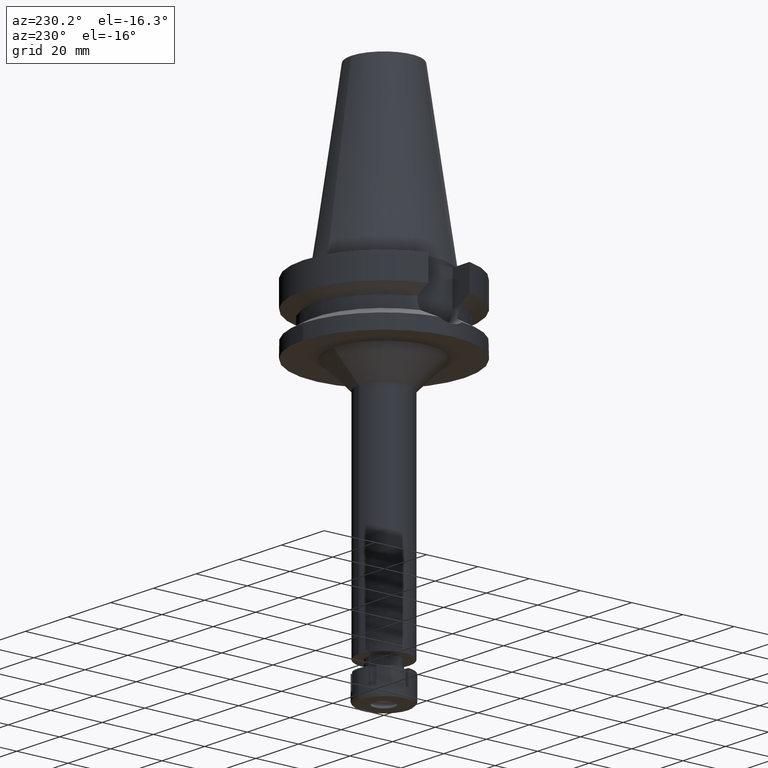
[diagram: clean part render]
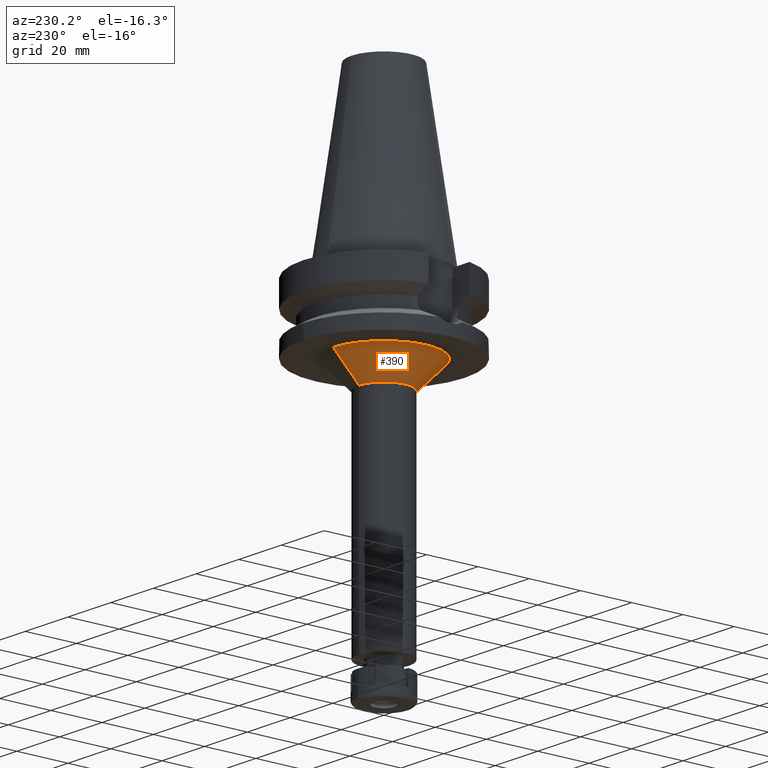
[diagram: same view with one face highlighted and labeled with its STEP entity id]
A machine part, auxiliary view. The second image highlights one B-rep face of the part: STEP entity #390.
In plain terms, the highlighted conical surface has half-angle 45 deg.
Its self-contained STEP definition (entity closure, byte-faithful):
#11 = VERTEX_POINT ( 'NONE', #2314 ) ;
#56 = DIRECTION ( 'NONE',  ( 0.0000000000000000000, -0.7071067811865474617, -0.7071067811865474617 ) ) ;
#209 = EDGE_CURVE ( 'NONE', #635, #1230, #1790, .T. ) ;
#387 = CARTESIAN_POINT ( 'NONE',  ( 0.0000000000000000000, 9.750000000000000000, -37.00000000000000000 ) ) ;
#390 = ADVANCED_FACE ( 'NONE', ( #1916 ), #603, .T. ) ;
#489 = DIRECTION ( 'NONE',  ( 0.0000000000000000000, 0.0000000000000000000, 1.000000000000000000 ) ) ;
#529 = ORIENTED_EDGE ( 'NONE', *, *, #2823, .T. ) ;
#603 = CONICAL_SURFACE ( 'NONE', #1553, 14.75000000000000000, 0.7853981633972997312 ) ;
#635 = VERTEX_POINT ( 'NONE', #2870 ) ;
#697 = VECTOR ( 'NONE', #56, 1000.000000000000114 ) ;
#700 = CARTESIAN_POINT ( 'NONE',  ( 0.0000000000000000000, -19.75000000000000000, -27.00000000000000000 ) ) ;
#816 = ORIENTED_EDGE ( 'NONE', *, *, #3193, .T. ) ;
#1151 = CARTESIAN_POINT ( 'NONE',  ( 0.0000000000000000000, 0.0000000000000000000, -37.00000000000000000 ) ) ;
#1175 = CIRCLE ( 'NONE', #1941, 19.75000000000000000 ) ;
#1230 = VERTEX_POINT ( 'NONE', #1525 ) ;
#1410 = AXIS2_PLACEMENT_3D ( 'NONE', #1151, #2247, #2809 ) ;
#1525 = CARTESIAN_POINT ( 'NONE',  ( 0.0000000000000000000, -9.750000000000000000, -37.00000000000000000 ) ) ;
#1553 = AXIS2_PLACEMENT_3D ( 'NONE', #2786, #489, #2481 ) ;
#1577 = DIRECTION ( 'NONE',  ( 0.0000000000000000000, -1.000000000000000000, 0.0000000000000000000 ) ) ;
#1790 = LINE ( 'NONE', #700, #2224 ) ;
#1881 = EDGE_CURVE ( 'NONE', #1230, #3191, #3011, .T. ) ;
#1916 = FACE_OUTER_BOUND ( 'NONE', #3175, .T. ) ;
#1941 = AXIS2_PLACEMENT_3D ( 'NONE', #2471, #2991, #1577 ) ;
#1943 = ORIENTED_EDGE ( 'NONE', *, *, #1881, .F. ) ;
#2027 = ORIENTED_EDGE ( 'NONE', *, *, #209, .F. ) ;
#2224 = VECTOR ( 'NONE', #2655, 1000.000000000000114 ) ;
#2247 = DIRECTION ( 'NONE',  ( 0.0000000000000000000, 0.0000000000000000000, -1.000000000000000000 ) ) ;
#2314 = CARTESIAN_POINT ( 'NONE',  ( 0.0000000000000000000, 19.75000000000000000, -27.00000000000000000 ) ) ;
#2471 = CARTESIAN_POINT ( 'NONE',  ( 0.0000000000000000000, 0.0000000000000000000, -27.00000000000000000 ) ) ;
#2481 = DIRECTION ( 'NONE',  ( 0.0000000000000000000, 1.000000000000000000, 0.0000000000000000000 ) ) ;
#2655 = DIRECTION ( 'NONE',  ( 0.0000000000000000000, 0.7071067811865474617, -0.7071067811865474617 ) ) ;
#2786 = CARTESIAN_POINT ( 'NONE',  ( 0.0000000000000000000, 0.0000000000000000000, -32.00000000000000000 ) ) ;
#2809 = DIRECTION ( 'NONE',  ( 0.0000000000000000000, -1.000000000000000000, 0.0000000000000000000 ) ) ;
#2823 = EDGE_CURVE ( 'NONE', #635, #11, #1175, .T. ) ;
#2870 = CARTESIAN_POINT ( 'NONE',  ( 0.0000000000000000000, -19.75000000000000000, -27.00000000000000000 ) ) ;
#2899 = LINE ( 'NONE', #3415, #697 ) ;
#2991 = DIRECTION ( 'NONE',  ( 0.0000000000000000000, 0.0000000000000000000, -1.000000000000000000 ) ) ;
#3011 = CIRCLE ( 'NONE', #1410, 9.750000000000000000 ) ;
#3175 = EDGE_LOOP ( 'NONE', ( #1943, #2027, #529, #816 ) ) ;
#3191 = VERTEX_POINT ( 'NONE', #387 ) ;
#3193 = EDGE_CURVE ( 'NONE', #11, #3191, #2899, .T. ) ;
#3415 = CARTESIAN_POINT ( 'NONE',  ( 0.0000000000000000000, 19.75000000000000000, -27.00000000000000000 ) ) ;